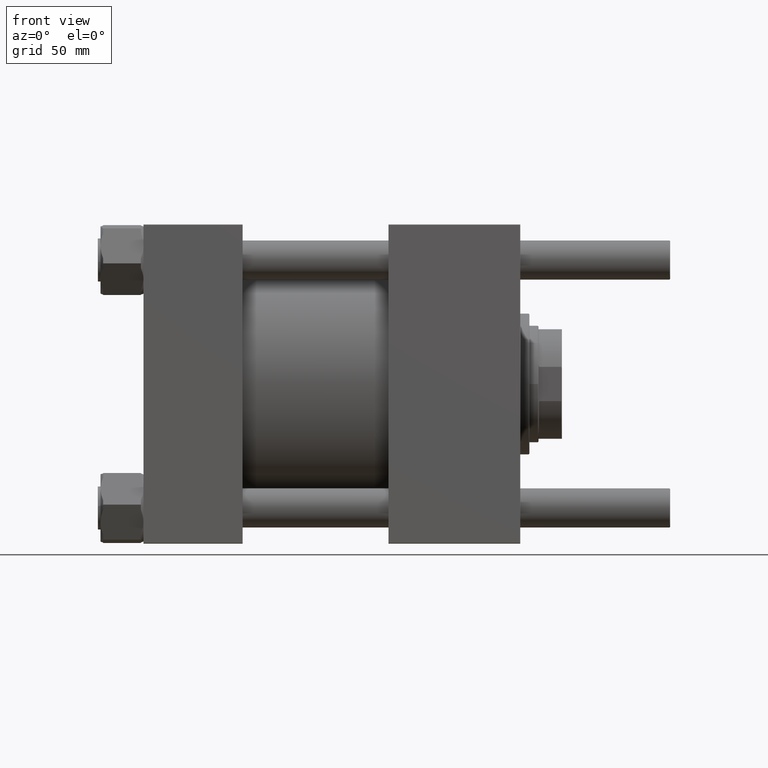
[diagram: clean part render]
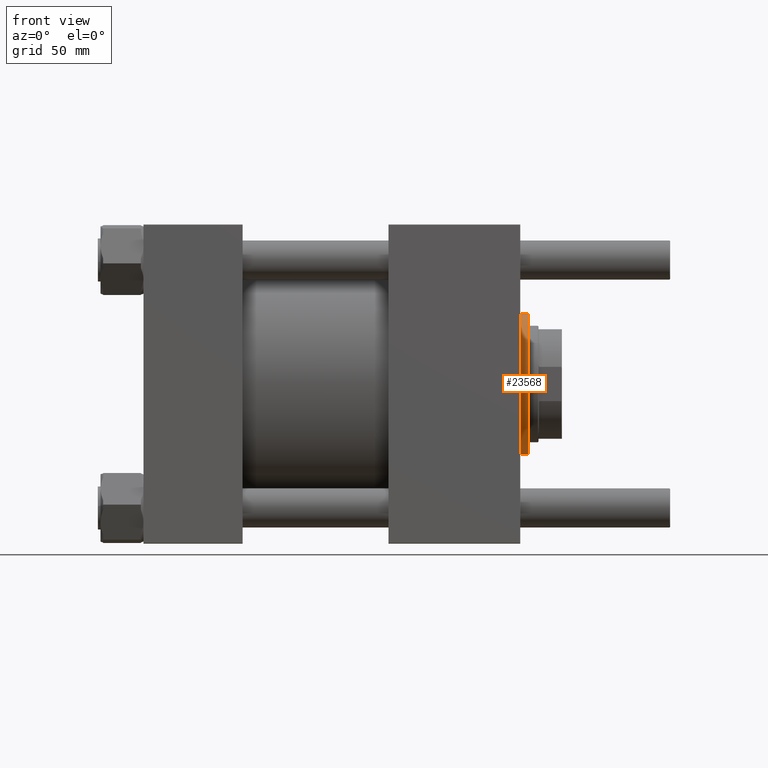
[diagram: same view with one face highlighted and labeled with its STEP entity id]
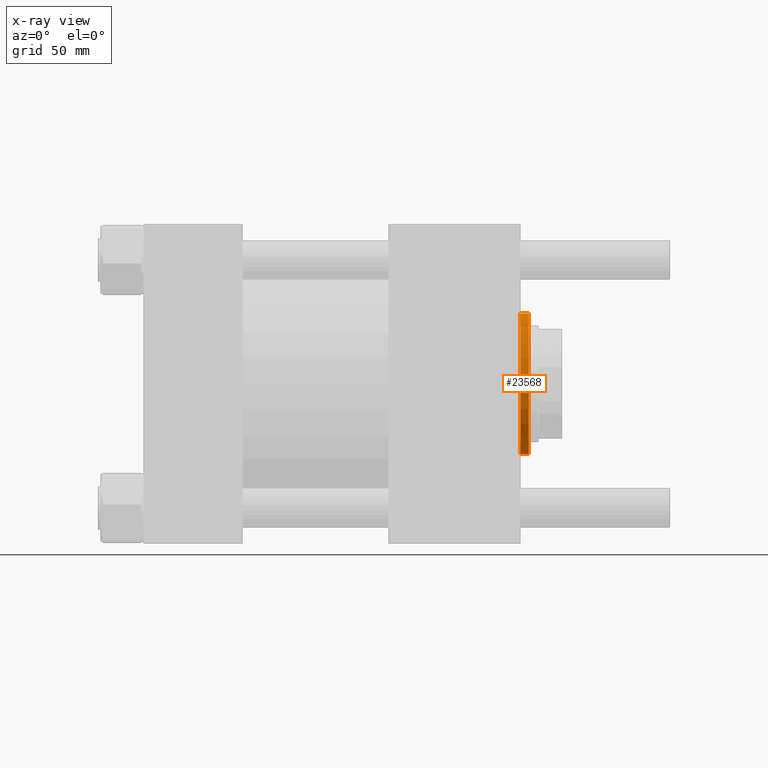
[diagram: x-ray of the same camera — body ghosted, the highlighted face saturated]
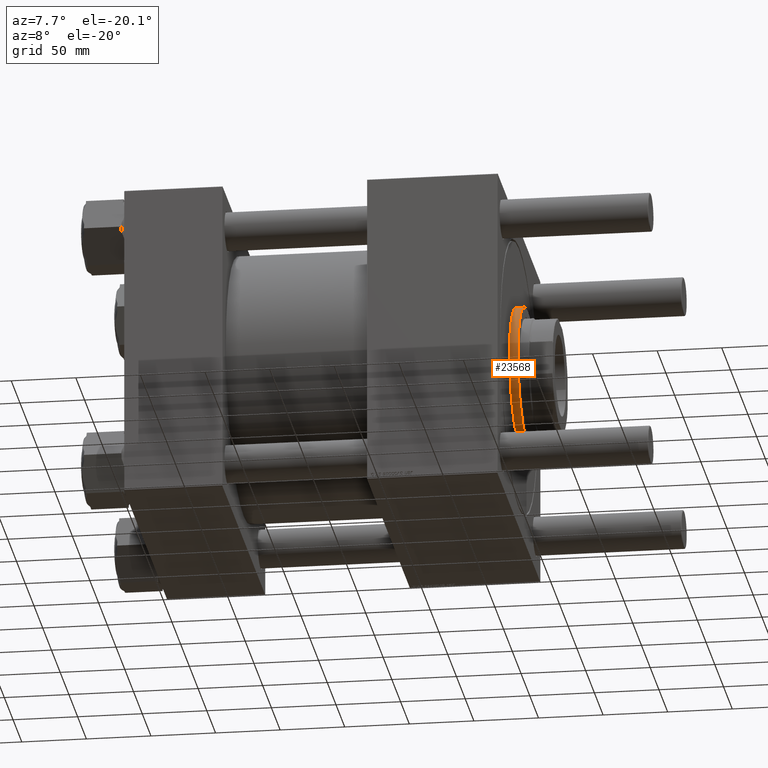
[diagram: same view with one face highlighted and labeled with its STEP entity id]
A machine part, front view. The second image highlights one B-rep face of the part: STEP entity #23568.
The next image is the same camera in x-ray: the body ghosted, the highlighted face saturated — about 0% of this face is hidden behind the body in this view.
A second angle (auxiliary view) of the same face is appended — the face is thin or edge-on in the first view.
In plain terms, the highlighted cylindrical surface (partial cylindrical patch) has radius 54 mm, axis along (-1, -0, 0).
Its self-contained STEP definition (entity closure, byte-faithful):
#1166 = DIRECTION ( 'NONE',  ( -0.000000000000000000, -0.000000000000000000, -1.000000000000000000 ) ) ;
#1288 = VERTEX_POINT ( 'NONE', #29093 ) ;
#3571 = DIRECTION ( 'NONE',  ( 1.000000000000000000, 0.000000000000000000, 0.000000000000000000 ) ) ;
#4934 = CIRCLE ( 'NONE', #28966, 54.00000000000000000 ) ;
#6003 = CARTESIAN_POINT ( 'NONE',  ( -54.00000000000000000, 0.000000000000000000, 35.20000000000000995 ) ) ;
#6743 = DIRECTION ( 'NONE',  ( -0.000000000000000000, -0.000000000000000000, -1.000000000000000000 ) ) ;
#6938 = EDGE_CURVE ( 'NONE', #30198, #1288, #10140, .T. ) ;
#7159 = DIRECTION ( 'NONE',  ( -1.000000000000000000, 0.000000000000000000, 0.000000000000000000 ) ) ;
#7445 = CYLINDRICAL_SURFACE ( 'NONE', #22019, 54.00000000000000000 ) ;
#10140 = LINE ( 'NONE', #40798, #27262 ) ;
#11495 = DIRECTION ( 'NONE',  ( -0.000000000000000000, -0.000000000000000000, -1.000000000000000000 ) ) ;
#14391 = EDGE_LOOP ( 'NONE', ( #50677, #33915, #46646, #25752 ) ) ;
#15322 = CARTESIAN_POINT ( 'NONE',  ( -54.00000000000000000, 0.000000000000000000, 28.69999999999999929 ) ) ;
#16265 = LINE ( 'NONE', #47223, #31750 ) ;
#17812 = CARTESIAN_POINT ( 'NONE',  ( 54.00000000000000000, 6.613092715395707467E-15, 35.20000000000000995 ) ) ;
#19221 = CIRCLE ( 'NONE', #51568, 54.00000000000000000 ) ;
#20325 = CARTESIAN_POINT ( 'NONE',  ( 0.000000000000000000, 0.000000000000000000, 35.20000000000000995 ) ) ;
#22019 = AXIS2_PLACEMENT_3D ( 'NONE', #46506, #11495, #7159 ) ;
#22343 = EDGE_CURVE ( 'NONE', #39948, #1288, #19221, .T. ) ;
#23568 = ADVANCED_FACE ( 'NONE', ( #50861 ), #7445, .T. ) ;
#25752 = ORIENTED_EDGE ( 'NONE', *, *, #22343, .T. ) ;
#27262 = VECTOR ( 'NONE', #1166, 1000.000000000000000 ) ;
#28966 = AXIS2_PLACEMENT_3D ( 'NONE', #20325, #47540, #3571 ) ;
#29093 = CARTESIAN_POINT ( 'NONE',  ( 54.00000000000000000, 6.613092715395707467E-15, 28.69999999999999929 ) ) ;
#30198 = VERTEX_POINT ( 'NONE', #17812 ) ;
#31750 = VECTOR ( 'NONE', #6743, 1000.000000000000000 ) ;
#33915 = ORIENTED_EDGE ( 'NONE', *, *, #43070, .T. ) ;
#33986 = CARTESIAN_POINT ( 'NONE',  ( 0.000000000000000000, 0.000000000000000000, 28.69999999999999929 ) ) ;
#38308 = EDGE_CURVE ( 'NONE', #39459, #39948, #16265, .T. ) ;
#39459 = VERTEX_POINT ( 'NONE', #6003 ) ;
#39948 = VERTEX_POINT ( 'NONE', #15322 ) ;
#40798 = CARTESIAN_POINT ( 'NONE',  ( 54.00000000000000000, 6.613092715395707467E-15, 35.70000000000000284 ) ) ;
#43070 = EDGE_CURVE ( 'NONE', #30198, #39459, #4934, .T. ) ;
#46506 = CARTESIAN_POINT ( 'NONE',  ( 0.000000000000000000, 0.000000000000000000, 35.70000000000000284 ) ) ;
#46646 = ORIENTED_EDGE ( 'NONE', *, *, #38308, .T. ) ;
#47223 = CARTESIAN_POINT ( 'NONE',  ( -54.00000000000000000, 0.000000000000000000, 35.70000000000000284 ) ) ;
#47540 = DIRECTION ( 'NONE',  ( 0.000000000000000000, 0.000000000000000000, -1.000000000000000000 ) ) ;
#50677 = ORIENTED_EDGE ( 'NONE', *, *, #6938, .F. ) ;
#50861 = FACE_OUTER_BOUND ( 'NONE', #14391, .T. ) ;
#51355 = DIRECTION ( 'NONE',  ( 1.000000000000000000, 0.000000000000000000, 0.000000000000000000 ) ) ;
#51568 = AXIS2_PLACEMENT_3D ( 'NONE', #33986, #55136, #51355 ) ;
#55136 = DIRECTION ( 'NONE',  ( 0.000000000000000000, 0.000000000000000000, 1.000000000000000000 ) ) ;